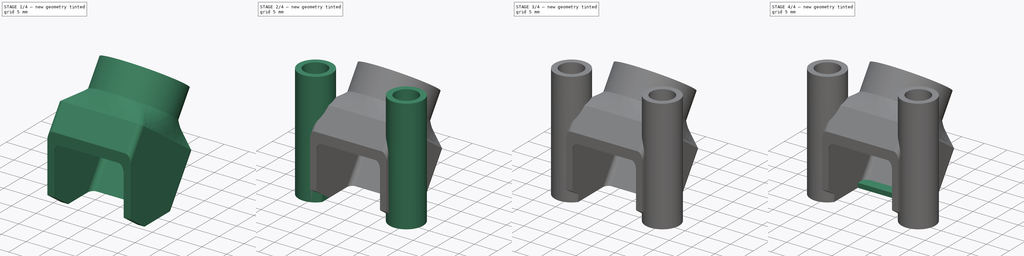
[diagram: build sequence overview — one tinted view per stage of 4, left to right]
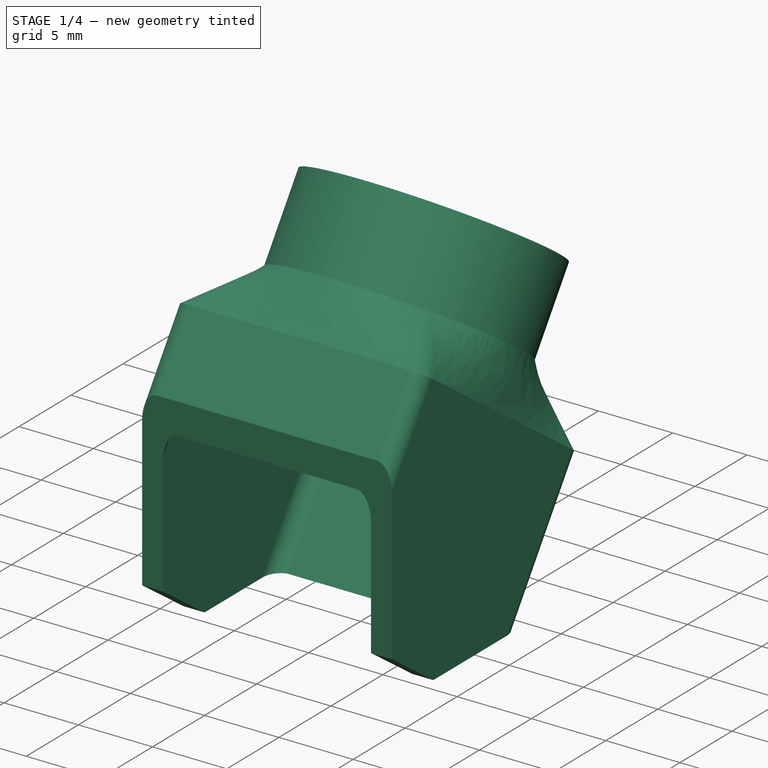
[diagram: stage 1 of 4 — iso view after this stage's code; geometry added in this stage tinted green]
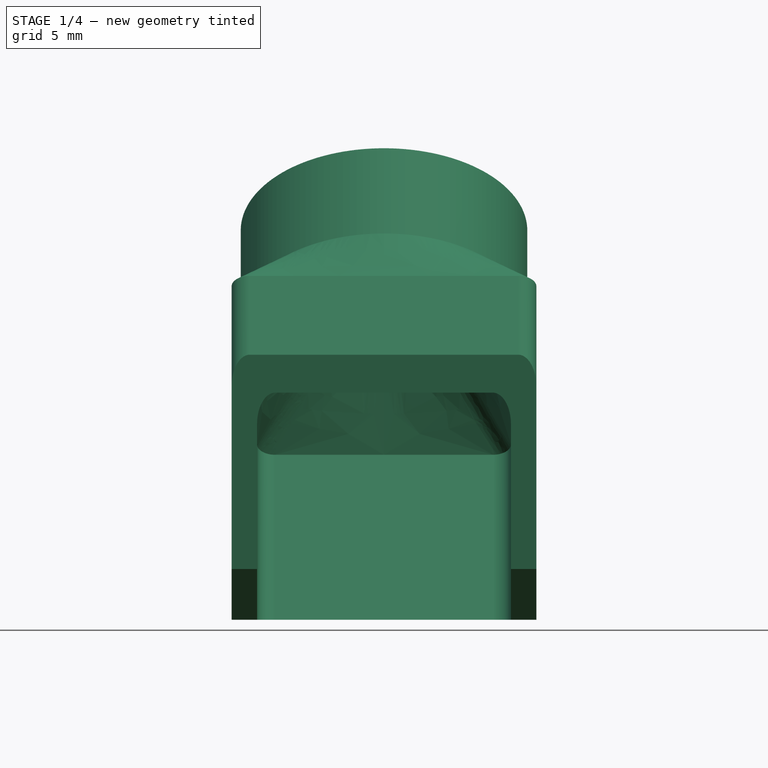
[diagram: stage 1 of 4 — front view after this stage's code; geometry added in this stage tinted green]
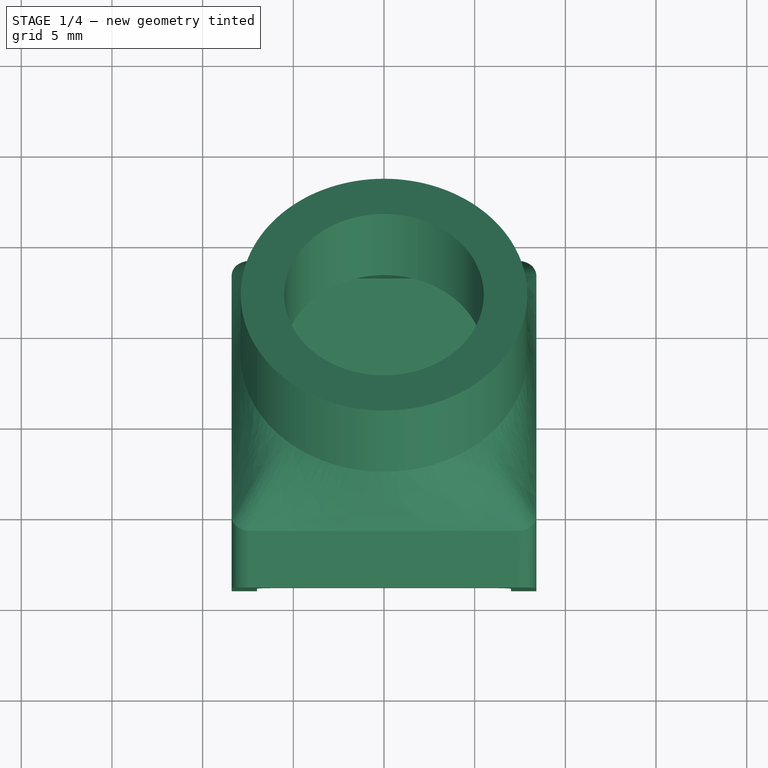
[diagram: stage 1 of 4 — top view after this stage's code; geometry added in this stage tinted green]
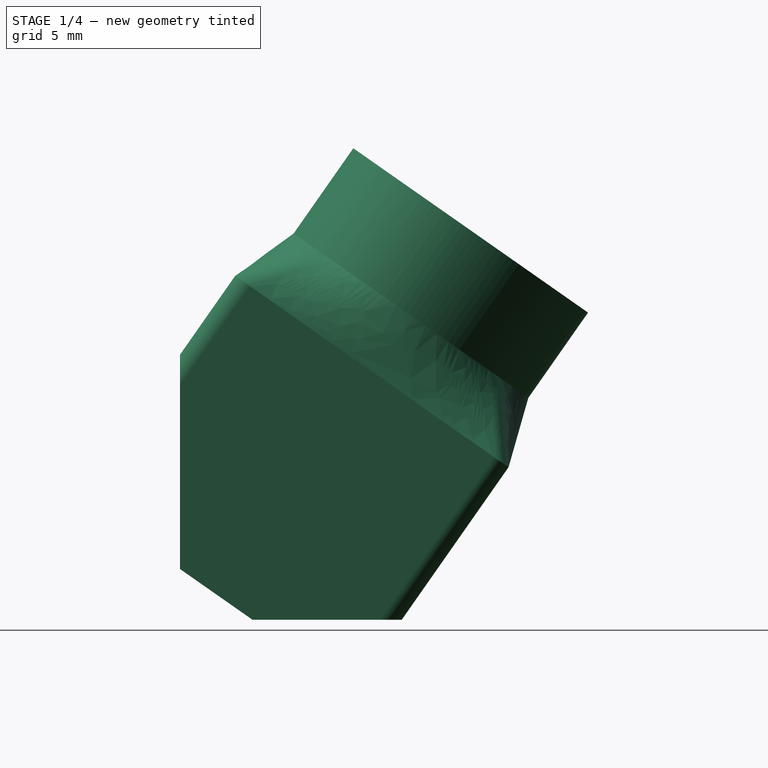
[diagram: stage 1 of 4 — right view after this stage's code; geometry added in this stage tinted green]
FCSTD DOCUMENT  (FreeCAD 0.20R29177 +426 (Git))
Label: mount_cam
License: All rights reserved
LicenseURL: http://en.wikipedia.org/wiki/All_rights_reserved
objects: Sketcher::SketchObject×14, PartDesign::Pocket×6, PartDesign::Pad×2, PartDesign::AdditiveLoft×1, PartDesign::Chamfer×1, PartDesign::Body×1
note: 35 computed .brp shape members not serialized (recipe doc carries the construction recipe); baked Part::Feature solids carry a one-line shape summary decoded from their .brp

FEATURE [Sketcher::SketchObject] Sketch  label="base"
  FullyConstrained = true
  MapMode = 5
  Support = -> [XY_Plane]
  sketch-geometry (2):
    g0: GeomPoint X=10 Y=0 Z=0
    g1: GeomPoint X=-10 Y=0 Z=0
  constraints (3):
    c: PointOnObject(g0,g-1)
    c: DistanceX(g1,g0) = 20
    c: Symmetric(g0,g1,g-1)
FEATURE [Sketcher::SketchObject] Sketch001  label="cam_dimensions"
  FullyConstrained = false
  MapMode = 5
  Placement = pos=(0,0,0) rot=(0.57735,0.57735,0.57735;2.0944rad)
  Support = -> [YZ_Plane]
  sketch-geometry (24):
    g0: LineSegment StartX=7.36073 StartY=23.5169 StartZ=0 EndX=15.5523 EndY=17.7811 EndZ=0
    g1: LineSegment StartX=-6.56825 StartY=8.85455 StartZ=0 EndX=6.53818 EndY=-0.322676 EndZ=0
    g2: LineSegment StartX=6.53818 StartY=-0.322676 StartZ=0 EndX=12.5607 EndY=8.27842 EndZ=0
    g3: LineSegment StartX=12.5607 StartY=8.27842 StartZ=0 EndX=-0.545699 EndY=17.4556 EndZ=0
    g4: LineSegment StartX=-0.545699 StartY=17.4556 StartZ=0 EndX=-6.56825 EndY=8.85455 EndZ=0
    g5: LineSegment StartX=6.00752 StartY=12.867 StartZ=0 EndX=11.4565 EndY=20.649 EndZ=0
    g6: Circle CenterX=4 CenterY=10 CenterZ=0 NormalX=0 NormalY=0 NormalZ=1 AngleXU=0 Radius=1
    g7: LineSegment StartX=-20.7098 StartY=25 StartZ=0 EndX=19.2902 EndY=25 EndZ=0
    g8: LineSegment StartX=7.93431 StartY=24.336 StartZ=0 EndX=16.1258 EndY=18.6002 EndZ=0
    g9: LineSegment StartX=0.0278776 StartY=18.2748 StartZ=0 EndX=13.1343 EndY=9.09757 EndZ=0
    g10: GeomPoint X=13.1343 Y=9.09757 Z=0
    g11: GeomPoint X=0.0278776 Y=18.2748 Z=0
    g12: GeomPoint X=16.1258 Y=18.6002 Z=0
    g13: GeomPoint X=7.93431 Y=24.336 Z=0
    g14: LineSegment StartX=-8.56764 StartY=5.99913 StartZ=0 EndX=4.53879 EndY=-3.1781 EndZ=0
    g15: LineSegment StartX=6.53818 StartY=-0.322676 StartZ=0 EndX=4.53879 EndY=-3.1781 EndZ=0
    g16: GeomPoint X=4.53879 Y=-3.1781 Z=0
    g17: GeomPoint X=4.53879 Y=-3.1781 Z=0
    g18: GeomPoint X=-8.56764 Y=5.99913 Z=0
    g19: GeomPoint X=4 Y=10 Z=0
    g20: LineSegment StartX=15.0558 StartY=12.3448 StartZ=0 EndX=3.96112 EndY=20.1133 EndZ=0
    g21: GeomPoint X=15.0558 Y=12.3448 Z=0
    g22: GeomPoint X=3.96112 Y=20.1133 Z=0
    g23: GeomPoint X=11.4565 Y=20.649 Z=0
  constraints (50):
    c: Coincident(g2,g1)
    c: Coincident(g3,g2)
    c: Coincident(g4,g3)
    c: Coincident(g4,g1)
    c: Perpendicular(g2,g3)
    c: Perpendicular(g1,g4)
    c: Perpendicular(g2,g1)
    c: Distance(g1) = 16
    c: Distance(g2) = 10.5
    c: Parallel(g3,g0)
    c: Perpendicular(g0,g5)
    c: Symmetric(g0,g0,g5)
    c: Symmetric(g2,g3,g5)
    c: Radius(g6) = 1
    c: Distance(g6,g1) = 7
    c: Distance(g6,g0) = 13
    c: Distance(g6,g2) = 8
    c: Angle(g-1,g2) = 0.959931
    c: Horizontal(g7)
    c: Distance(g7,g-1) = 25
    c: DistanceX(g-1,g6) = 4
    c: DistanceY(g-1,g6) = 10
    c: Distance(g0) = 10
    c: Parallel(g9,g3)
    c: Parallel(g3,g8)
    c: Equal(g0,g8)
    c: Distance(g8,g5) = 5
    c: Distance(g0,g8) = 1
    c: Distance(g3,g9) = 1
    c: Equal(g9,g3)
    c: Distance(g9,g5) = 8
    c: Coincident(g10,g9)
    c: Coincident(g11,g9)
    c: Coincident(g12,g8)
    c: Coincident(g13,g8)
    c: PointOnObject(g-1,g14)
    c: Parallel(g14,g1)
    c: Equal(g1,g14)
    c: Coincident(g15,g1)
    c: Coincident(g15,g14)
    c: Perpendicular(g15,g1)
    c: Coincident(g16,g14)
    c: Coincident(g17,g14)
    c: Coincident(g18,g14)
    c: Coincident(g19,g6)
    c: Parallel(g20,g8)
    c: Coincident(g21,g20)
    c: Coincident(g22,g20)
    c: Distance(g7) = 40
    c: Coincident(g23,g5)
FEATURE [Sketcher::SketchObject] Sketch002  label="lens_plane"
  AttachmentOffset = pos=(0,0,0) rot=(1,0,0;1.5708rad)
  ExternalGeometry = -> [Sketch001]
  FullyConstrained = true
  MapMode = 47
  Placement = pos=(-3.6e-15,7.93431,24.336) rot=(0,0.953717,-0.300706;3.14159rad)
  Support = -> [Sketch001]
  sketch-geometry (2):
    g0: Circle CenterX=-3e-16 CenterY=5 CenterZ=0 NormalX=0 NormalY=0 NormalZ=1 AngleXU=0 Radius=7.9
    g1: Circle CenterX=-3e-16 CenterY=5 CenterZ=0 NormalX=0 NormalY=0 NormalZ=1 AngleXU=0 Radius=5.5
  constraints (4):
    c: Radius(g1) = 5.5
    c: Radius(g0) = 7.9
    c: Coincident(g1,g-3)
    c: Coincident(g0,g-3)
FEATURE [Sketcher::SketchObject] Sketch003  label="body_top_plane"
  ExternalGeometry = -> [Sketch001]
  FullyConstrained = true
  MapMode = 49
  Placement = pos=(-4.1e-15,0.0278776,18.2748) rot=(-0.287968,0.287968,0.913318;1.66134rad)
  Support = -> [Sketch001]
  sketch-geometry (20):
    g0: ArcOfCircle CenterX=-0.2 CenterY=7.4 CenterZ=0 NormalX=0 NormalY=0 NormalZ=1 AngleXU=0 Radius=1 StartAngle=1.5708 EndAngle=3.14159
    g1: LineSegment StartX=-0.2 StartY=8.4 StartZ=0 EndX=16.2 EndY=8.4 EndZ=0
    g2: ArcOfCircle CenterX=16.2 CenterY=7.4 CenterZ=0 NormalX=0 NormalY=0 NormalZ=1 AngleXU=0 Radius=1 StartAngle=7e-16 EndAngle=1.5708
    g3: LineSegment StartX=17.2 StartY=7.4 StartZ=0 EndX=17.2 EndY=-7.4 EndZ=0
    g4: ArcOfCircle CenterX=16.2 CenterY=-7.4 CenterZ=0 NormalX=0 NormalY=0 NormalZ=1 AngleXU=0 Radius=1 StartAngle=4.71239 EndAngle=6.28319
    g5: LineSegment StartX=16.2 StartY=-8.4 StartZ=0 EndX=-0.2 EndY=-8.4 EndZ=0
    g6: ArcOfCircle CenterX=-0.2 CenterY=-7.4 CenterZ=0 NormalX=0 NormalY=0 NormalZ=1 AngleXU=0 Radius=1 StartAngle=3.14159 EndAngle=4.71239
    g7: LineSegment StartX=-1.2 StartY=-7.4 StartZ=0 EndX=-1.2 EndY=7.4 EndZ=0
    g8: GeomPoint X=-1.2 Y=8.4 Z=0
    g9: GeomPoint X=17.2 Y=-8.4 Z=0
    g10: ArcOfCircle CenterX=1 CenterY=6 CenterZ=0 NormalX=0 NormalY=0 NormalZ=1 AngleXU=0 Radius=1 StartAngle=1.5708 EndAngle=3.14159
    g11: LineSegment StartX=1 StartY=7 StartZ=0 EndX=15 EndY=7 EndZ=0
    g12: ArcOfCircle CenterX=15 CenterY=6 CenterZ=0 NormalX=0 NormalY=0 NormalZ=1 AngleXU=0 Radius=1 StartAngle=-2.04e-14 EndAngle=1.5708
    g13: LineSegment StartX=16 StartY=6 StartZ=0 EndX=16 EndY=-6 EndZ=0
    g14: ArcOfCircle CenterX=15 CenterY=-6 CenterZ=0 NormalX=0 NormalY=0 NormalZ=1 AngleXU=0 Radius=1 StartAngle=4.71239 EndAngle=6.28319
    g15: LineSegment StartX=15 StartY=-7 StartZ=0 EndX=1 EndY=-7 EndZ=0
    g16: ArcOfCircle CenterX=1 CenterY=-6 CenterZ=0 NormalX=0 NormalY=0 NormalZ=1 AngleXU=0 Radius=1 StartAngle=3.14159 EndAngle=4.71239
    g17: LineSegment StartX=4e-16 StartY=-6 StartZ=0 EndX=4e-16 EndY=6 EndZ=0
    g18: GeomPoint X=3e-16 Y=7 Z=0
    g19: GeomPoint X=16 Y=-7 Z=0
  constraints (46):
    c: Tangent(g0,g1) = 1.5708
    c: Tangent(g1,g2) = 1.5708
    c: Tangent(g2,g3) = 1.5708
    c: Tangent(g3,g4) = 1.5708
    c: Tangent(g4,g5) = 1.5708
    c: Tangent(g5,g6) = 1.5708
    c: Tangent(g6,g7) = 1.5708
    c: Tangent(g7,g0) = 1.5708
    c: Horizontal(g1)
    c: Horizontal(g5)
    c: Vertical(g3)
    c: Vertical(g7)
    c: Equal(g0,g2)
    c: Equal(g2,g4)
    c: Equal(g4,g6)
    c: PointOnObject(g8,g1)
    c: PointOnObject(g8,g7)
    c: PointOnObject(g9,g3)
    c: PointOnObject(g9,g5)
    c: Radius(g4) = 1
    c: Distance(g1,g4) = 16.8
    c: Distance(g3,g6) = 18.4
    c: Tangent(g10,g11) = 1.5708
    c: Tangent(g11,g12) = 1.5708
    c: Tangent(g12,g13) = 1.5708
    c: Tangent(g13,g14) = 1.5708
    c: Tangent(g14,g15) = 1.5708
    c: Tangent(g15,g16) = 1.5708
    c: Tangent(g16,g17) = 1.5708
    c: Tangent(g17,g10) = 1.5708
    c: Horizontal(g11)
    c: Horizontal(g15)
    c: Vertical(g13)
    c: Vertical(g17)
    c: Equal(g10,g12)
    c: Equal(g12,g14)
    c: Equal(g14,g16)
    c: PointOnObject(g18,g11)
    c: PointOnObject(g18,g17)
    c: PointOnObject(g19,g13)
    c: PointOnObject(g19,g15)
    c: Radius(g14) = 1
    c: Distance(g13,g16) = 16
    c: Distance(g14,g11) = 14
    c: Symmetric(g14,g10,g-3)
    c: Symmetric(g0,g4,g-3)
FEATURE [Sketcher::SketchObject] Sketch004  label="body_bot_plane"
  ExternalGeometry = -> [Sketch001]
  FullyConstrained = true
  MapMode = 49
  Placement = pos=(-3.2e-15,-8.56764,5.99913) rot=(-0.287968,0.287968,0.913318;1.66134rad)
  Support = -> [Sketch001]
  sketch-geometry (20):
    g0: ArcOfCircle CenterX=-0.2 CenterY=7.4 CenterZ=0 NormalX=0 NormalY=0 NormalZ=1 AngleXU=0 Radius=1 StartAngle=1.5708 EndAngle=3.14159
    g1: LineSegment StartX=-0.2 StartY=8.4 StartZ=0 EndX=16.2 EndY=8.4 EndZ=0
    g2: ArcOfCircle CenterX=16.2 CenterY=7.4 CenterZ=0 NormalX=0 NormalY=0 NormalZ=1 AngleXU=0 Radius=1 StartAngle=-1.8e-15 EndAngle=1.5708
    g3: LineSegment StartX=17.2 StartY=7.4 StartZ=0 EndX=17.2 EndY=-7.4 EndZ=0
    g4: ArcOfCircle CenterX=16.2 CenterY=-7.4 CenterZ=0 NormalX=0 NormalY=0 NormalZ=1 AngleXU=0 Radius=1 StartAngle=4.71239 EndAngle=6.28319
    g5: LineSegment StartX=16.2 StartY=-8.4 StartZ=0 EndX=-0.2 EndY=-8.4 EndZ=0
    g6: ArcOfCircle CenterX=-0.2 CenterY=-7.4 CenterZ=0 NormalX=0 NormalY=0 NormalZ=1 AngleXU=0 Radius=1 StartAngle=3.14159 EndAngle=4.71239
    g7: LineSegment StartX=-1.2 StartY=-7.4 StartZ=0 EndX=-1.2 EndY=7.4 EndZ=0
    g8: GeomPoint X=-1.2 Y=8.4 Z=0
    g9: GeomPoint X=17.2 Y=-8.4 Z=0
    g10: ArcOfCircle CenterX=1 CenterY=6 CenterZ=0 NormalX=0 NormalY=0 NormalZ=1 AngleXU=0 Radius=1 StartAngle=1.5708 EndAngle=3.14159
    g11: LineSegment StartX=1 StartY=7 StartZ=0 EndX=15 EndY=7 EndZ=0
    g12: ArcOfCircle CenterX=15 CenterY=6 CenterZ=0 NormalX=0 NormalY=0 NormalZ=1 AngleXU=0 Radius=1 StartAngle=-1.8e-15 EndAngle=1.5708
    g13: LineSegment StartX=16 StartY=6 StartZ=0 EndX=16 EndY=-6 EndZ=0
    g14: ArcOfCircle CenterX=15 CenterY=-6 CenterZ=0 NormalX=0 NormalY=0 NormalZ=1 AngleXU=0 Radius=1 StartAngle=4.71239 EndAngle=6.28319
    g15: LineSegment StartX=15 StartY=-7 StartZ=0 EndX=1 EndY=-7 EndZ=0
    g16: ArcOfCircle CenterX=1 CenterY=-6 CenterZ=0 NormalX=0 NormalY=0 NormalZ=1 AngleXU=0 Radius=1 StartAngle=3.14159 EndAngle=4.71239
    g17: LineSegment StartX=-3.8e-15 StartY=-6 StartZ=0 EndX=-3.8e-15 EndY=6 EndZ=0
    g18: GeomPoint X=-3.8e-15 Y=7 Z=0
    g19: GeomPoint X=16 Y=-7 Z=0
  constraints (46):
    c: Tangent(g0,g1) = 1.5708
    c: Tangent(g1,g2) = 1.5708
    c: Tangent(g2,g3) = 1.5708
    c: Tangent(g3,g4) = 1.5708
    c: Tangent(g4,g5) = 1.5708
    c: Tangent(g5,g6) = 1.5708
    c: Tangent(g6,g7) = 1.5708
    c: Tangent(g7,g0) = 1.5708
    c: Horizontal(g1)
    c: Horizontal(g5)
    c: Vertical(g3)
    c: Vertical(g7)
    c: Equal(g0,g2)
    c: Equal(g2,g4)
    c: Equal(g4,g6)
    c: PointOnObject(g8,g1)
    c: PointOnObject(g8,g7)
    c: PointOnObject(g9,g3)
    c: PointOnObject(g9,g5)
    c: Radius(g4) = 1
    c: Distance(g1,g4) = 16.8
    c: Distance(g3,g6) = 18.4
    c: Tangent(g10,g11) = 1.5708
    c: Tangent(g11,g12) = 1.5708
    c: Tangent(g12,g13) = 1.5708
    c: Tangent(g13,g14) = 1.5708
    c: Tangent(g14,g15) = 1.5708
    c: Tangent(g15,g16) = 1.5708
    c: Tangent(g16,g17) = 1.5708
    c: Tangent(g17,g10) = 1.5708
    c: Horizontal(g11)
    c: Horizontal(g15)
    c: Vertical(g13)
    c: Vertical(g17)
    c: Equal(g10,g12)
    c: Equal(g12,g14)
    c: Equal(g14,g16)
    c: PointOnObject(g18,g11)
    c: PointOnObject(g18,g17)
    c: PointOnObject(g19,g13)
    c: PointOnObject(g19,g15)
    c: Radius(g14) = 1
    c: Distance(g13,g16) = 16
    c: Distance(g14,g11) = 14
    c: Symmetric(g14,g10,g-3)
    c: Symmetric(g4,g0,g-3)
FEATURE [Sketcher::SketchObject] Sketch005
  ExternalGeometry = -> [Sketch002]
  FullyConstrained = false
  MapMode = 49
  Placement = pos=(-3.6e-15,3.96112,20.1133) rot=(-0.287968,0.287968,0.913318;1.66134rad)
  Support = -> [Sketch001]
  sketch-geometry (4):
    g0: Circle CenterX=5.83261 CenterY=-9e-16 CenterZ=0 NormalX=0 NormalY=0 NormalZ=1 AngleXU=0 Radius=7.9
    g1: Circle CenterX=5.83261 CenterY=-9e-16 CenterZ=0 NormalX=0 NormalY=0 NormalZ=1 AngleXU=0 Radius=5.5
    g2: GeomPoint X=0.540366 Y=-1.49737 Z=0
    g3: GeomPoint X=-2.06011 Y=-0.338906 Z=0
  constraints (6):
    c: Coincident(g0,g-4)
    c: Coincident(g1,g0)
    c: PointOnObject(g2,g-3)
    c: PointOnObject(g3,g-4)
    c: PointOnObject(g2,g1)
    c: PointOnObject(g3,g0)
FEATURE [PartDesign::AdditiveLoft] AdditiveLoft
  Closed = false
  Placement = pos=(0,0,0) rot=(0.57735,0.57735,0.57735;2.0944rad)
  Profile = -> Sketch002
  Ruled = true
  Sections = -> [Sketch005,Sketch003,Sketch004]
FEATURE [Sketcher::SketchObject] Sketch006  label="mount_hole"
  ExternalGeometry = -> [Sketch001]
  FullyConstrained = true
  MapMode = 5
  Placement = pos=(8.4,5e-16,2.6e-15) rot=(0.57735,0.57735,0.57735;2.0944rad)
  Support = -> [AdditiveLoft]
  sketch-geometry (1):
    g0: Circle CenterX=4 CenterY=10 CenterZ=0 NormalX=0 NormalY=0 NormalZ=1 AngleXU=0 Radius=1
  constraints (2):
    c: Coincident(g0,g-3)
    c: Radius(g0) = 1
FEATURE [Sketcher::SketchObject] Sketch007
  FullyConstrained = true
  MapMode = 5
  Placement = pos=(0,0,0) rot=(0.57735,0.57735,0.57735;2.0944rad)
  Support = -> [YZ_Plane]
  sketch-geometry (6):
    g0: LineSegment StartX=20 StartY=0 StartZ=0 EndX=-4 EndY=0 EndZ=0
    g1: LineSegment StartX=-4 StartY=0 StartZ=0 EndX=-4 EndY=25 EndZ=0
    g2: LineSegment StartX=-4 StartY=25 StartZ=0 EndX=-24 EndY=25 EndZ=0
    g3: LineSegment StartX=-24 StartY=25 StartZ=0 EndX=-24 EndY=-10 EndZ=0
    g4: LineSegment StartX=-24 StartY=-10 StartZ=0 EndX=20 EndY=-10 EndZ=0
    g5: LineSegment StartX=20 StartY=-10 StartZ=0 EndX=20 EndY=0 EndZ=0
  constraints (18):
    c: PointOnObject(g0,g-1)
    c: PointOnObject(g0,g-1)
    c: Coincident(g0,g1)
    c: Vertical(g1)
    c: Coincident(g1,g2)
    c: Horizontal(g2)
    c: Coincident(g2,g3)
    c: Vertical(g3)
    c: Coincident(g3,g4)
    c: Horizontal(g4)
    c: Coincident(g4,g5)
    c: Coincident(g5,g0)
    c: Vertical(g5)
    c: Distance(g0,g-1) = 4
    c: Distance(g0,g4) = 10
    c: Distance(g-1,g0) = 20
    c: Distance(g0,g1) = 25
    c: Distance(g2) = 20
FEATURE [PartDesign::Pocket] Pocket001  label="cam_body_framing"
  BaseFeature = -> AdditiveLoft
  Direction = (-1,2e-16,-3e-16)
  Length = 5
  Length2 = 5
  Midplane = true
  Placement = pos=(0,0,0) rot=(0.57735,0.57735,0.57735;2.0944rad)
  Profile = -> Sketch007
  ReferenceAxis = -> Sketch007 [N_Axis]
  Type = 1
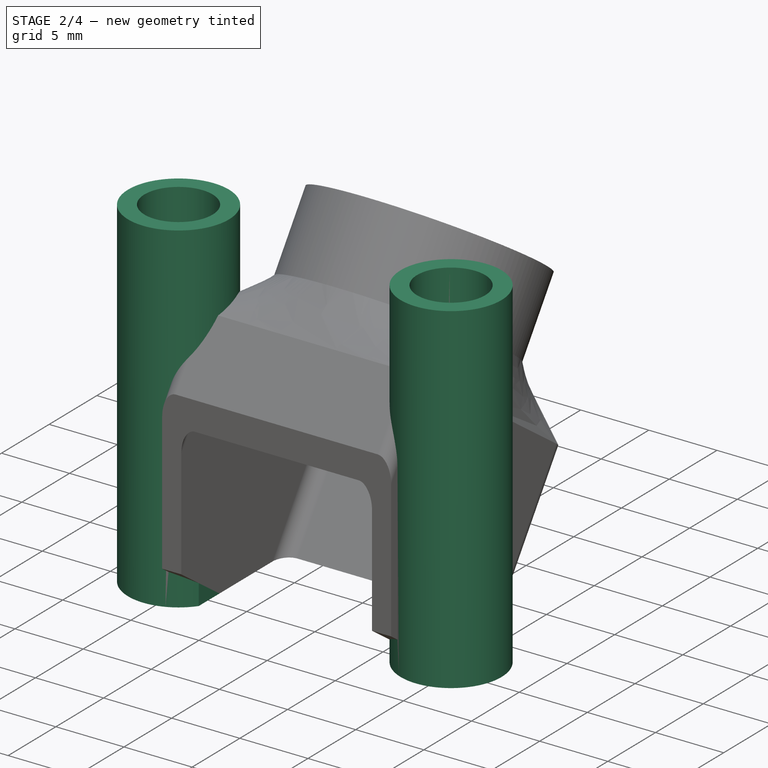
[diagram: stage 2 of 4 — iso view after this stage's code; geometry added in this stage tinted green]
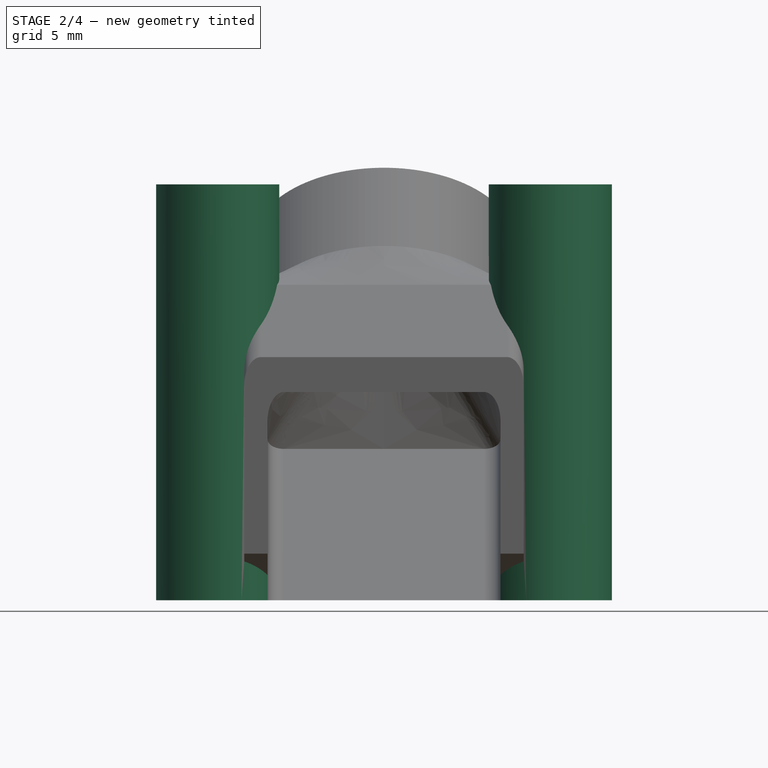
[diagram: stage 2 of 4 — front view after this stage's code; geometry added in this stage tinted green]
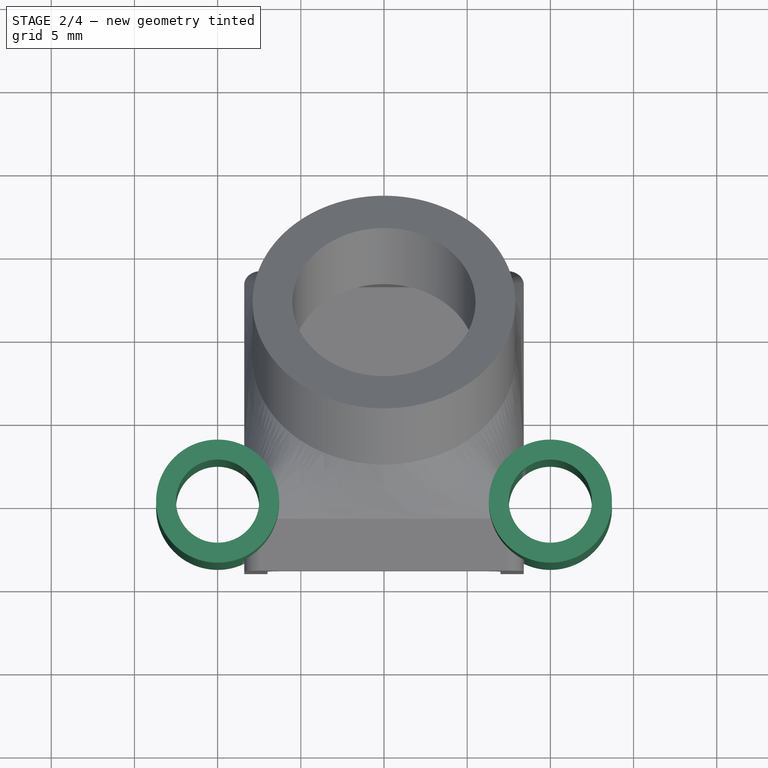
[diagram: stage 2 of 4 — top view after this stage's code; geometry added in this stage tinted green]
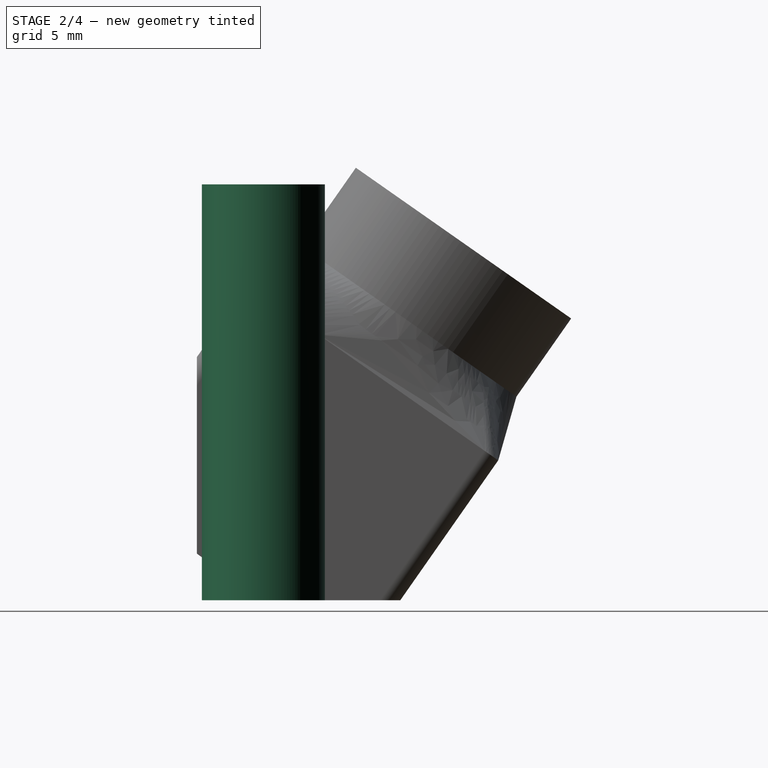
[diagram: stage 2 of 4 — right view after this stage's code; geometry added in this stage tinted green]
FEATURE [Sketcher::SketchObject] Sketch008
  ExternalGeometry = -> [Sketch,Pocket001]
  FullyConstrained = true
  MapMode = 5
  Support = -> [XY_Plane]
  sketch-geometry (4):
    g0: Circle CenterX=-10 CenterY=0 CenterZ=0 NormalX=0 NormalY=0 NormalZ=1 AngleXU=0 Radius=2.5
    g1: Circle CenterX=10 CenterY=0 CenterZ=0 NormalX=0 NormalY=0 NormalZ=1 AngleXU=0 Radius=2.5
    g2: Circle CenterX=-10 CenterY=0 CenterZ=0 NormalX=0 NormalY=0 NormalZ=1 AngleXU=0 Radius=3.7
    g3: Circle CenterX=10 CenterY=0 CenterZ=0 NormalX=0 NormalY=0 NormalZ=1 AngleXU=0 Radius=3.7
  constraints (8):
    c: Equal(g1,g0)
    c: Radius(g0) = 2.5
    c: Equal(g2,g3)
    c: Radius(g2) = 3.7
    c: Coincident(g-4,g3)
    c: Coincident(g-4,g1)
    c: Coincident(g-3,g2)
    c: Coincident(g-3,g0)
FEATURE [PartDesign::Pad] Pad  label="stand_mounts"
  BaseFeature = -> Pocket001
  Direction = (0,0,1)
  Length = 25
  Length2 = 10
  Placement = pos=(0,0,0) rot=(0.57735,0.57735,0.57735;2.0944rad)
  Profile = -> Sketch008
  ReferenceAxis = -> Sketch008 [N_Axis]
  Type = 0
FEATURE [Sketcher::SketchObject] Sketch009
  ExternalGeometry = -> [Sketch,Pad]
  FullyConstrained = true
  MapMode = 5
  Placement = pos=(0,0,0) rot=(0.707107,0.707107,0;3.14159rad)
  Support = -> [Pad]
  sketch-geometry (2):
    g0: Circle CenterX=-4.4e-15 CenterY=-10 CenterZ=0 NormalX=0 NormalY=0 NormalZ=1 AngleXU=0 Radius=2.5
    g1: Circle CenterX=4.4e-15 CenterY=10 CenterZ=0 NormalX=0 NormalY=0 NormalZ=1 AngleXU=0 Radius=2.5
  constraints (4):
    c: Coincident(g0,g-3)
    c: PointOnObject(g-5,g0)
    c: Coincident(g1,g-4)
    c: PointOnObject(g-6,g1)
FEATURE [PartDesign::Pocket] Pocket  label="stand_mounts_cleanup"
  BaseFeature = -> Pad
  Direction = (0,-1e-16,1)
  Length = 5
  Length2 = 5
  Placement = pos=(0,0,0) rot=(0.57735,0.57735,0.57735;2.0944rad)
  Profile = -> Sketch009
  ReferenceAxis = -> Sketch009 [N_Axis]
  Type = 1
FEATURE [Sketcher::SketchObject] Sketch010
  ExternalGeometry = -> [Pocket]
  FullyConstrained = true
  MapMode = 5
  Placement = pos=(0,4e-16,5e-16) rot=(0.690162,0.690162,-0.217607;2.71306rad)
  Support = -> [Pocket]
  sketch-geometry (6):
    g0: LineSegment StartX=4.54084 StartY=7 StartZ=0 EndX=-9.45916 EndY=7 EndZ=0
    g1: LineSegment StartX=-9.45916 StartY=5 StartZ=0 EndX=-9.45916 EndY=-5 EndZ=0
    g2: LineSegment StartX=-9.45916 StartY=-7 StartZ=0 EndX=4.54084 EndY=-7 EndZ=0
    g3: LineSegment StartX=4.54084 StartY=-7 StartZ=0 EndX=4.54084 EndY=7 EndZ=0
    g4: ArcOfCircle CenterX=-9.45916 CenterY=-6 CenterZ=0 NormalX=0 NormalY=0 NormalZ=1 AngleXU=0 Radius=1 StartAngle=1.5708 EndAngle=4.71239
    g5: ArcOfCircle CenterX=-9.45916 CenterY=6 CenterZ=0 NormalX=0 NormalY=0 NormalZ=1 AngleXU=0 Radius=1 StartAngle=1.5708 EndAngle=4.71239
  constraints (16):
    c: Coincident(g2,g3)
    c: Coincident(g3,g0)
    c: Horizontal(g0)
    c: Horizontal(g2)
    c: Vertical(g1)
    c: Vertical(g3)
    c: Coincident(g0,g-3)
    c: Coincident(g2,g-4)
    c: Coincident(g4,g-5)
    c: Coincident(g4,g2)
    c: Coincident(g5,g-6)
    c: Coincident(g5,g0)
    c: Coincident(g1,g4)
    c: Coincident(g1,g5)
    c: Vertical(g4,g1)
    c: Vertical(g5,g0)
FEATURE [PartDesign::Pocket] Pocket002  label="cam_pocket_cleanup"
  BaseFeature = -> Pocket
  Direction = (1e-16,0.573576,0.819152)
  Length = 15
  Length2 = 55
  Placement = pos=(0,0,0) rot=(0.57735,0.57735,0.57735;2.0944rad)
  Profile = -> Sketch010
  ReferenceAxis = -> Sketch010 [N_Axis]
  Type = 4
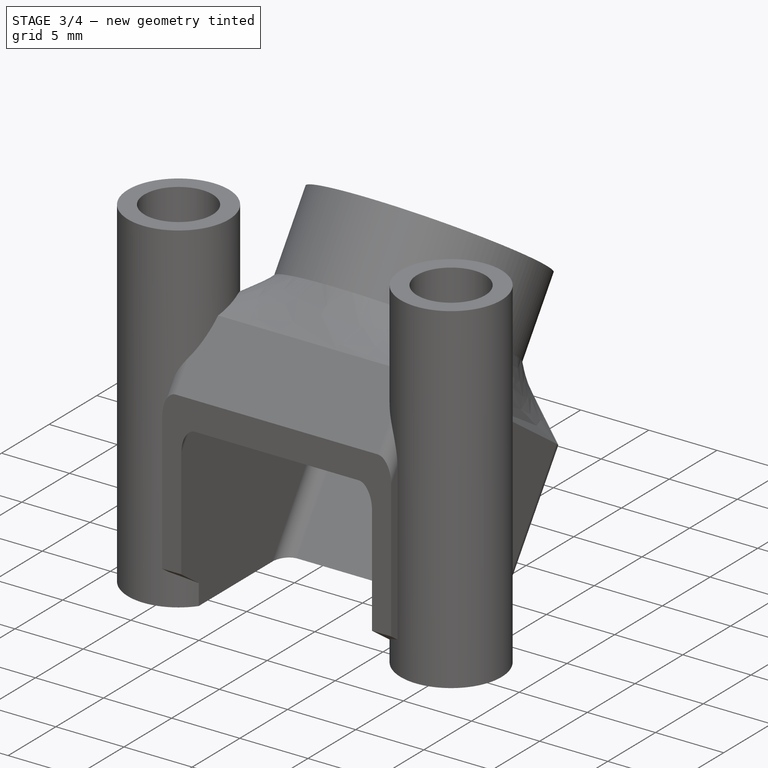
[diagram: stage 3 of 4 — iso view after this stage's code; geometry added in this stage tinted green]
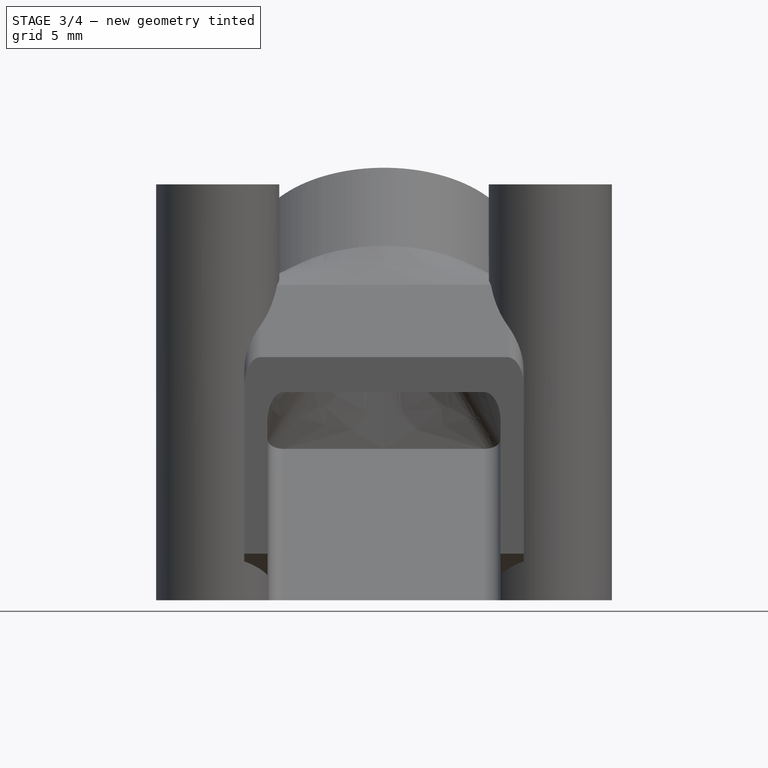
[diagram: stage 3 of 4 — front view after this stage's code; geometry added in this stage tinted green]
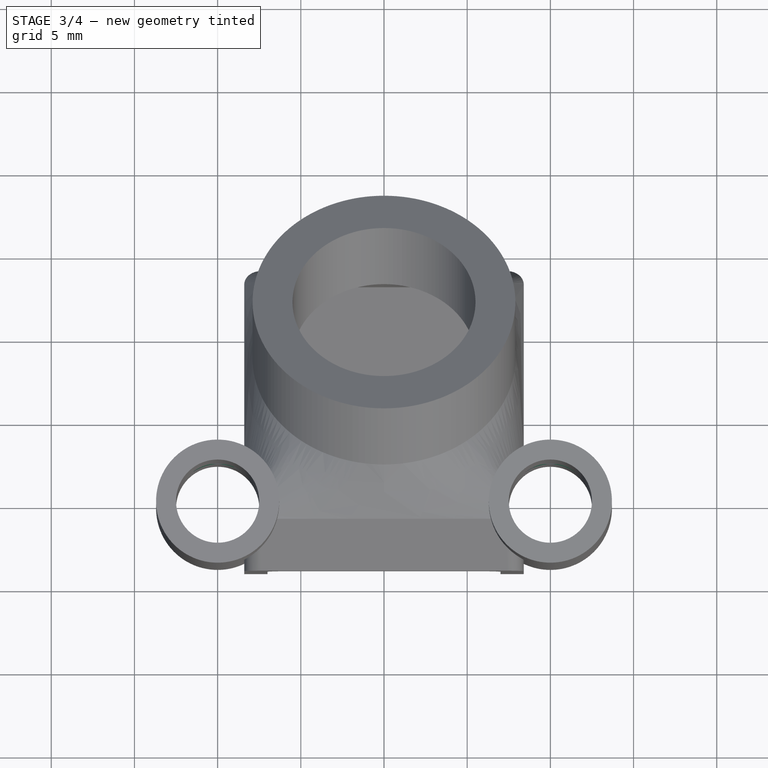
[diagram: stage 3 of 4 — top view after this stage's code; geometry added in this stage tinted green]
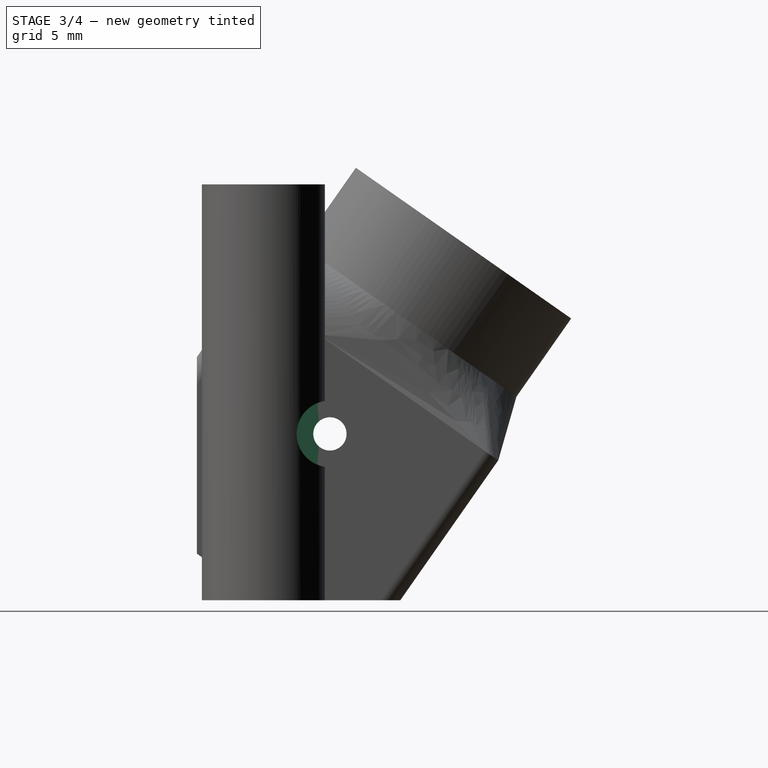
[diagram: stage 3 of 4 — right view after this stage's code; geometry added in this stage tinted green]
FEATURE [PartDesign::Pocket] Pocket003  label="screw_holes"
  BaseFeature = -> Pocket002
  Direction = (-1,-1e-16,-3e-16)
  Length = 5
  Length2 = 5
  Midplane = true
  Placement = pos=(0,0,0) rot=(0.57735,0.57735,0.57735;2.0944rad)
  Profile = -> Sketch006
  ReferenceAxis = -> Sketch006 [N_Axis]
  Type = 1
FEATURE [Sketcher::SketchObject] Sketch011
  ExternalGeometry = -> [Sketch001]
  FullyConstrained = true
  MapMode = 5
  Placement = pos=(8.4,5e-16,-2e-15) rot=(0.57735,0.57735,0.57735;2.0944rad)
  Support = -> [Pocket003]
  sketch-geometry (1):
    g0: Circle CenterX=4 CenterY=10 CenterZ=0 NormalX=0 NormalY=0 NormalZ=1 AngleXU=0 Radius=2
  constraints (2):
    c: Coincident(g0,g-3)
    c: Radius(g0) = 2
FEATURE [PartDesign::Pocket] Pocket004  label="screw_space_right"
  BaseFeature = -> Pocket003
  Direction = (-1,0,2e-16)
  Length = 5
  Length2 = 5
  Placement = pos=(0,0,0) rot=(0.57735,0.57735,0.57735;2.0944rad)
  Profile = -> Sketch011
  ReferenceAxis = -> Sketch011 [N_Axis]
  Reversed = true
  Type = 1
FEATURE [Sketcher::SketchObject] Sketch012
  ExternalGeometry = -> [Sketch001]
  FullyConstrained = true
  MapMode = 5
  Placement = pos=(-8.4,1.2e-15,5.4e-15) rot=(-0.57735,-0.57735,0.57735;2.0944rad)
  Support = -> [Pocket004]
  sketch-geometry (1):
    g0: Circle CenterX=4 CenterY=-10 CenterZ=0 NormalX=0 NormalY=0 NormalZ=1 AngleXU=0 Radius=2
  constraints (2):
    c: Coincident(g0,g-3)
    c: Radius(g0) = 2
FEATURE [PartDesign::Pocket] Pocket005  label="screw_space_left"
  BaseFeature = -> Pocket004
  Direction = (1,-1e-16,-6e-16)
  Length = 5
  Length2 = 5
  Placement = pos=(0,0,0) rot=(0.57735,0.57735,0.57735;2.0944rad)
  Profile = -> Sketch012
  ReferenceAxis = -> Sketch012 [N_Axis]
  Reversed = true
  Type = 1
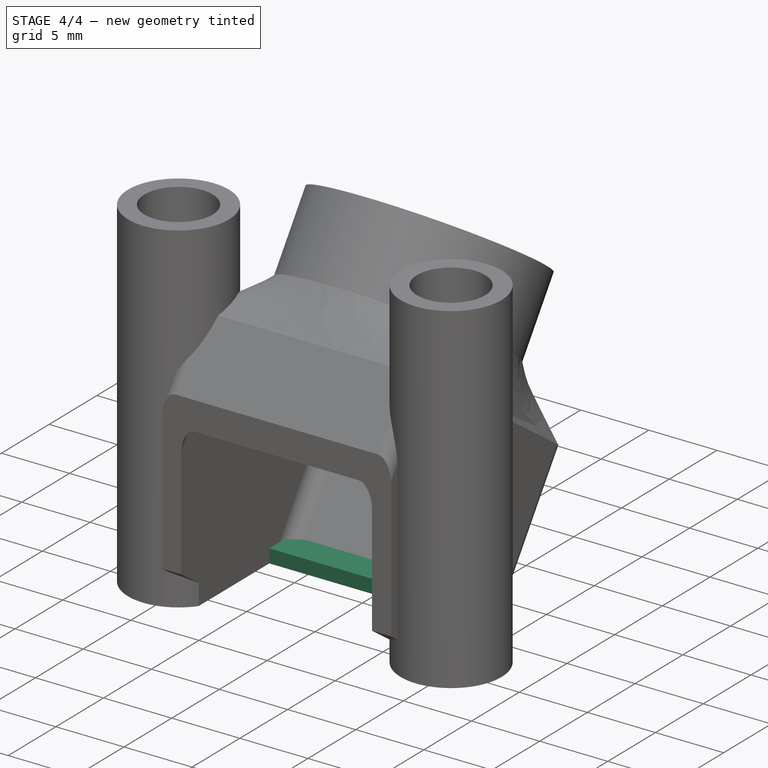
[diagram: stage 4 of 4 — iso view after this stage's code; geometry added in this stage tinted green]
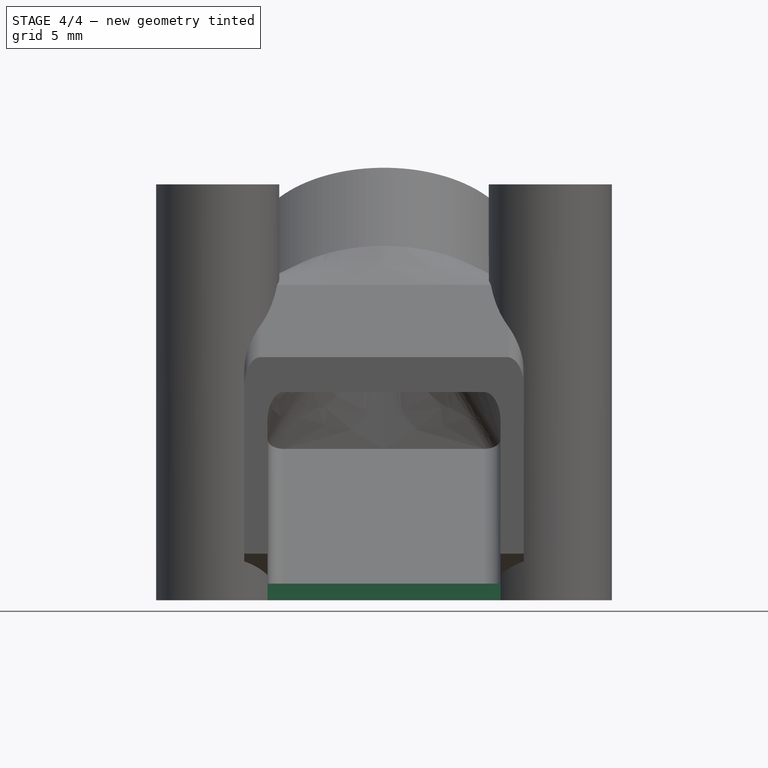
[diagram: stage 4 of 4 — front view after this stage's code; geometry added in this stage tinted green]
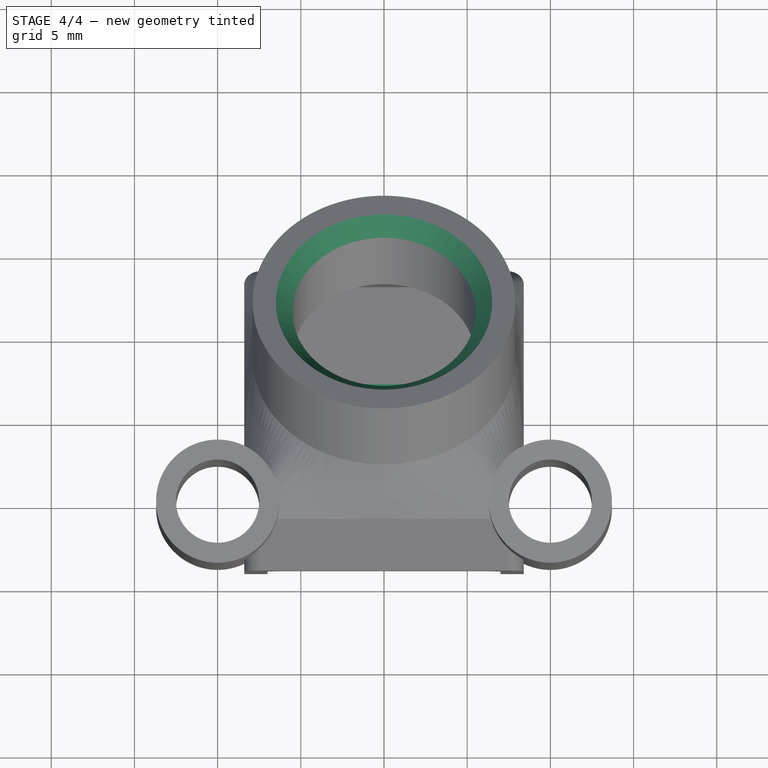
[diagram: stage 4 of 4 — top view after this stage's code; geometry added in this stage tinted green]
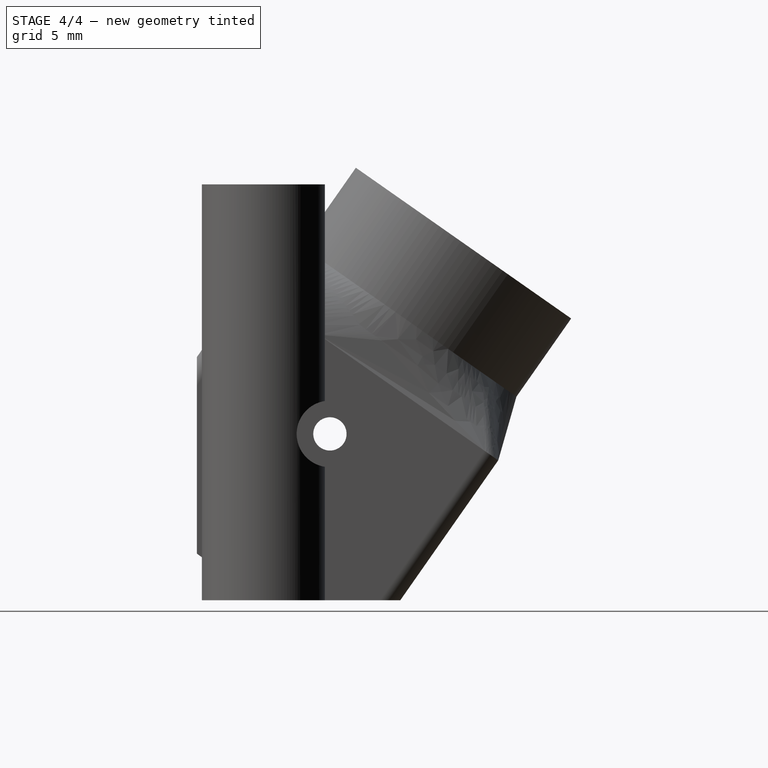
[diagram: stage 4 of 4 — right view after this stage's code; geometry added in this stage tinted green]
FEATURE [PartDesign::Chamfer] Chamfer  label="lens_chamfer"
  Angle = 45
  Base = -> Pocket005 [Edge16]
  BaseFeature = -> Pocket005
  ChamferType = 0
  FlipDirection = false
  Placement = pos=(0,0,0) rot=(0.57735,0.57735,0.57735;2.0944rad)
  Size = 1
  Size2 = 1
  SupportTransform = false
  UseAllEdges = false
FEATURE [Sketcher::SketchObject] Sketch013
  ExternalGeometry = -> [Chamfer]
  FullyConstrained = true
  MapMode = 5
  Placement = pos=(0,0,-5.32e-14) rot=(0.707107,0.707107,0;3.14159rad)
  Support = -> [Chamfer]
  sketch-geometry (4):
    g0: LineSegment StartX=8.22905 StartY=7.4 StartZ=0 EndX=5.22905 EndY=7.4 EndZ=0
    g1: LineSegment StartX=5.22905 StartY=7.4 StartZ=0 EndX=5.22905 EndY=-7.4 EndZ=0
    g2: LineSegment StartX=5.22905 StartY=-7.4 StartZ=0 EndX=8.22905 EndY=-7.4 EndZ=0
    g3: LineSegment StartX=8.22905 StartY=-7.4 StartZ=0 EndX=8.22905 EndY=7.4 EndZ=0
  constraints (10):
    c: Coincident(g0,g1)
    c: Coincident(g1,g2)
    c: Coincident(g2,g3)
    c: Coincident(g3,g0)
    c: Horizontal(g0)
    c: Horizontal(g2)
    c: Vertical(g1)
    c: Coincident(g0,g-7)
    c: Coincident(g-8,g2)
    c: Distance(g2) = 3
FEATURE [PartDesign::Pad] Pad001
  BaseFeature = -> Chamfer
  Direction = (2e-16,4e-16,-1)
  Length = 1
  Length2 = 10
  Placement = pos=(0,0,0) rot=(0.57735,0.57735,0.57735;2.0944rad)
  Profile = -> Sketch013
  ReferenceAxis = -> Sketch013 [N_Axis]
  Reversed = true
  Type = 0
FEATURE [PartDesign::Body] Body  label="hdzero_nano_v1_stock"
  Group = -> [Sketch,Sketch001,Sketch002,Sketch003,Sketch004,Sketch005,AdditiveLoft,Sketch006,Sketch007,Pocket001,Sketch008,Pad,Sketch009,Pocket,Sketch010,Pocket002,Pocket003,Sketch011,Pocket004,Sketch012,Pocket005,Chamfer,Sketch013,Pad001]
  Origin = -> Origin
  Tip = -> Pad001
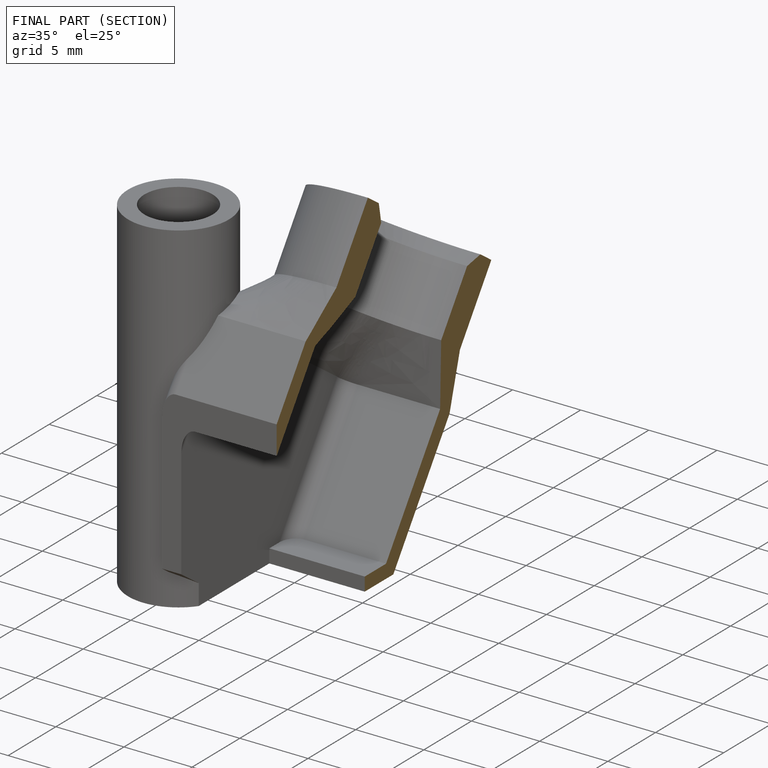
[diagram: finished part — half-section view (interior)]
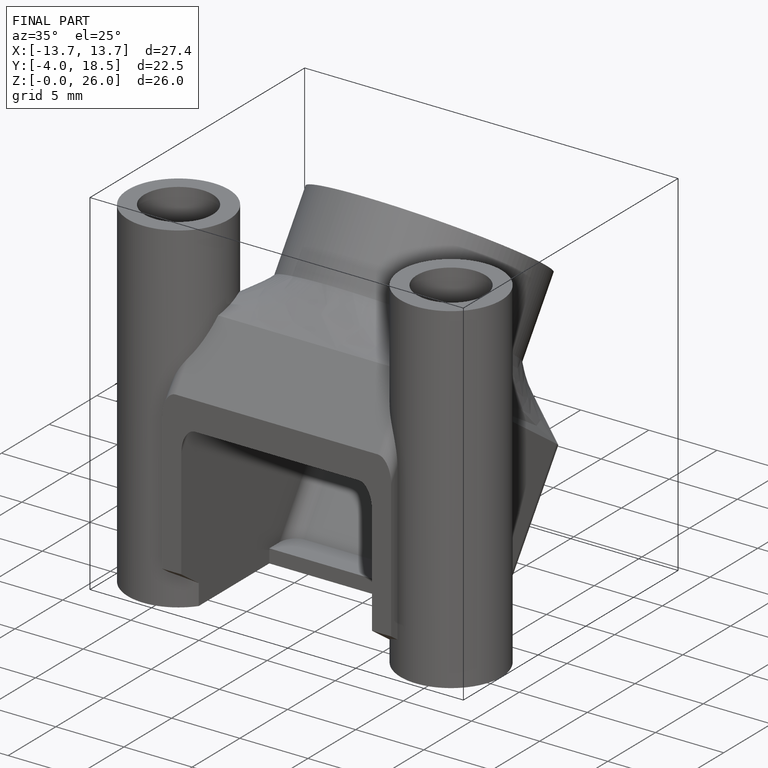
[diagram: finished part — iso view with bounding-box wireframe]
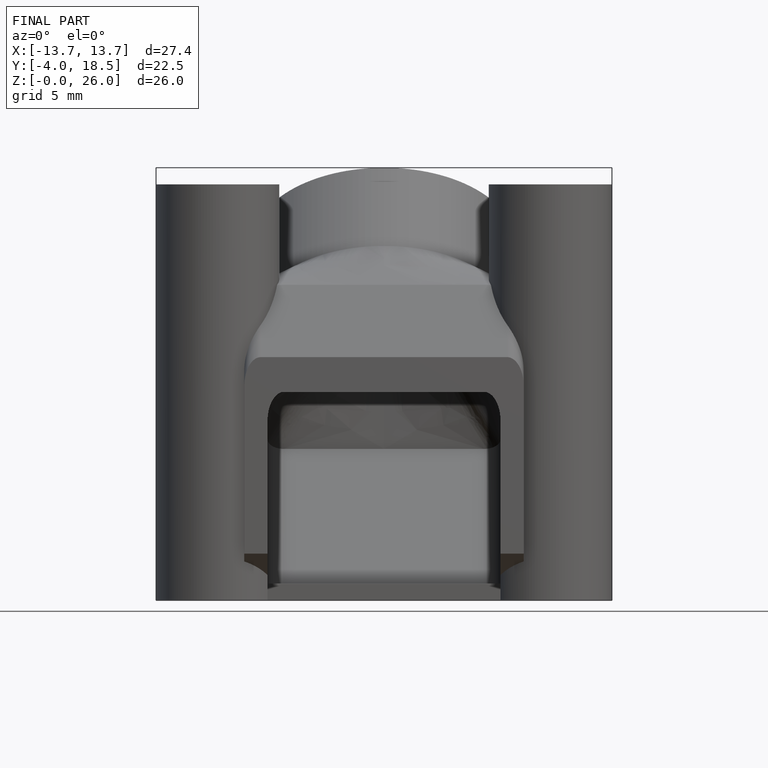
[diagram: finished part — front view with bounding-box wireframe]
